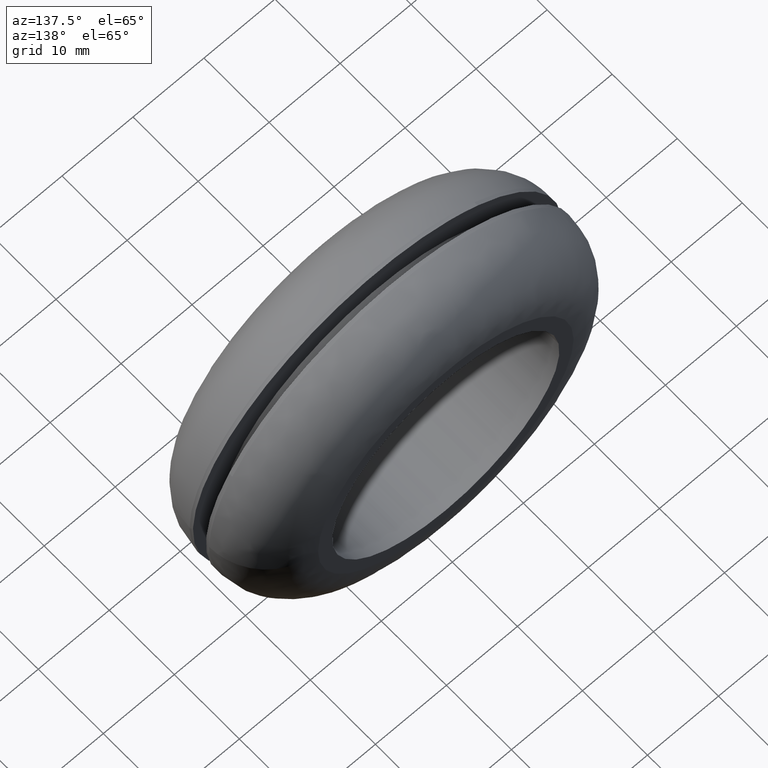
[diagram: clean part render]
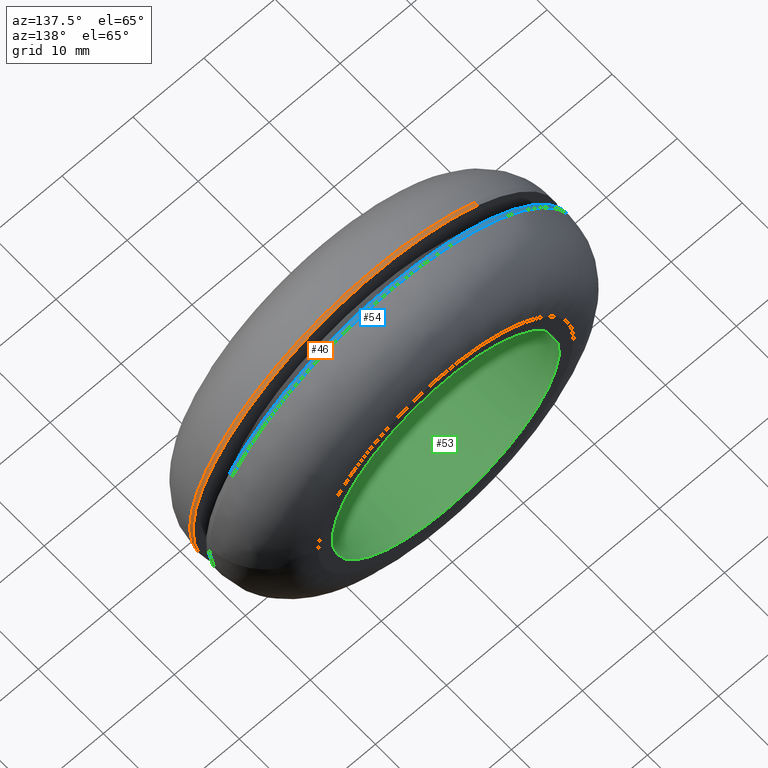
[diagram: same view with three faces highlighted in distinct colors, each labeled with its STEP entity id]
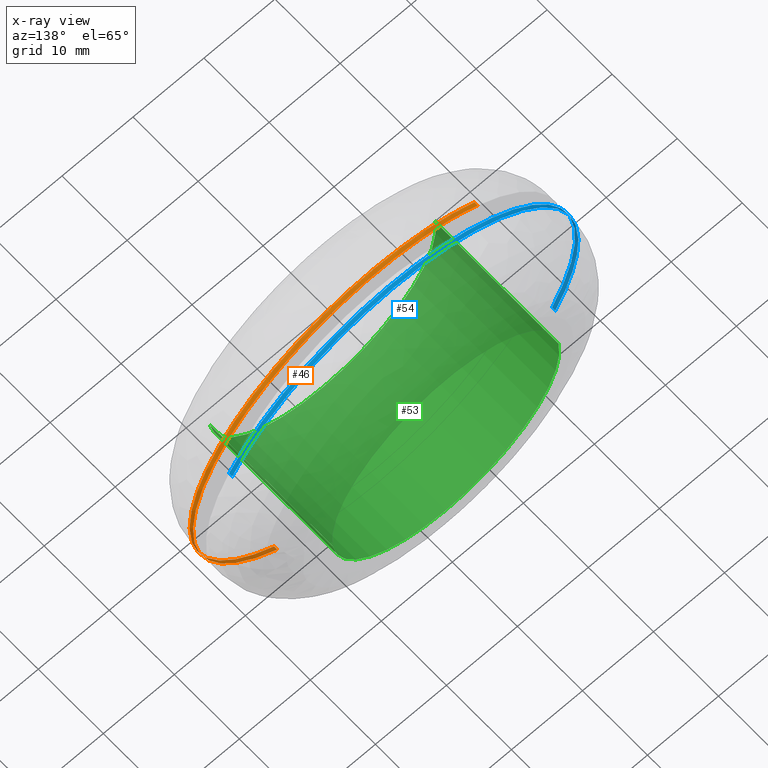
[diagram: x-ray of the same camera — body ghosted, the three highlighted faces saturated]
A machine part, auxiliary view with three faces highlighted in distinct colors.
The next image is the same camera in x-ray (body ghosted, the three faces saturated) — at least one of them is partly hidden behind the body in this view.
Their STEP definitions:

[orange] entity #46 — the highlighted cylindrical surface (partial cylindrical patch) has radius 26 mm, axis along (-0, 1, -0).
#46=ADVANCED_FACE('',(#121),#120,.T.);
#120=CYLINDRICAL_SURFACE('',#257,2.60000000000E+001);
#121=FACE_OUTER_BOUND('',#258,.T.);
#254=CARTESIAN_POINT('',(2.56769125169E-015,8.51250000000E+000,3.49013534840E-015));
#255=DIRECTION('',(-3.68710081750E-016,1.00000000000E+000,-2.38251823065E-016));
#256=DIRECTION('',(-5.42728861529E-001,-4.93038065763E-032,8.39907960948E-001));
#257=AXIS2_PLACEMENT_3D('',#254,#255,#256);
#258=EDGE_LOOP('',(#422,#423,#424,#425,#426,#427,#428));
#422=ORIENTED_EDGE('',*,*,#493,.T.);
#423=ORIENTED_EDGE('',*,*,#518,.F.);
#424=ORIENTED_EDGE('',*,*,#519,.F.);
#425=ORIENTED_EDGE('',*,*,#520,.F.);
#426=ORIENTED_EDGE('',*,*,#521,.F.);
#427=ORIENTED_EDGE('',*,*,#522,.F.);
#428=ORIENTED_EDGE('',*,*,#523,.T.);
#493=EDGE_CURVE('',#552,#544,#553,.T.);
#518=EDGE_CURVE('',#724,#544,#725,.T.);
#519=EDGE_CURVE('',#731,#724,#732,.T.);
#520=EDGE_CURVE('',#738,#731,#739,.T.);
#521=EDGE_CURVE('',#745,#738,#746,.T.);
#522=EDGE_CURVE('',#752,#745,#753,.T.);
#523=EDGE_CURVE('',#752,#552,#759,.T.);
#544=VERTEX_POINT('',#896);
#552=VERTEX_POINT('',#902);
#553=(BOUNDED_CURVE() B_SPLINE_CURVE(2,(#903,#904,#905,#906,#907),.UNSPECIFIED.,.F.,.F.) B_SPLINE_CURVE_WITH_KNOTS((3,2,3),(0.00000000000E+000,5.00000000000E-001,1.00000000000E+000),.UNSPECIFIED.) CURVE() GEOMETRIC_REPRESENTATION_ITEM() RATIONAL_B_SPLINE_CURVE((1.00000000000E+000,7.07160008252E-001,1.00000000000E+000,7.07160008252E-001,1.00000000000E+000)) REPRESENTATION_ITEM('') );
#724=VERTEX_POINT('',#1020);
#725=(BOUNDED_CURVE() B_SPLINE_CURVE(1,(#1021,#1022),.UNSPECIFIED.,.F.,.F.) B_SPLINE_CURVE_WITH_KNOTS((2,2),(8.33340485896E-002,9.16666738312E-001),.UNSPECIFIED.) CURVE() GEOMETRIC_REPRESENTATION_ITEM() RATIONAL_B_SPLINE_CURVE((1.00000000000E+000,1.00000000000E+000)) REPRESENTATION_ITEM('') );
#731=VERTEX_POINT('',#1023);
#732=CIRCLE('',#1027,2.60000000000E+001);
#738=VERTEX_POINT('',#1028);
#739=CIRCLE('',#1032,2.60000000000E+001);
#745=VERTEX_POINT('',#1033);
#746=CIRCLE('',#1037,2.60000000000E+001);
#752=VERTEX_POINT('',#1038);
#753=CIRCLE('',#1042,2.60000000000E+001);
#759=(BOUNDED_CURVE() B_SPLINE_CURVE(1,(#1043,#1044),.UNSPECIFIED.,.F.,.F.) B_SPLINE_CURVE_WITH_KNOTS((2,2),(8.33344103782E-002,9.16666666667E-001),.UNSPECIFIED.) CURVE() GEOMETRIC_REPRESENTATION_ITEM() RATIONAL_B_SPLINE_CURVE((7.50000000000E-001,7.50000000000E-001)) REPRESENTATION_ITEM('') );
#896=CARTESIAN_POINT('',(-1.41109503993E+001,8.50000000000E+000,2.18376069849E+001));
#902=CARTESIAN_POINT('',(1.41109503998E+001,8.50000000000E+000,-2.18376069846E+001));
#903=CARTESIAN_POINT('',(1.41109503998E+001,8.50000000000E+000,-2.18376069846E+001));
#904=CARTESIAN_POINT('',(3.59475954574E+001,8.50000000000E+000,-7.71795709582E+000));
#905=CARTESIAN_POINT('',(2.18354822698E+001,8.50000000000E+000,1.41142379903E+001));
#906=CARTESIAN_POINT('',(7.72336908215E+000,8.50000000000E+000,3.59464330765E+001));
#907=CARTESIAN_POINT('',(-1.41109503993E+001,8.50000000000E+000,2.18376069849E+001));
#1020=CARTESIAN_POINT('',(-1.41109503998E+001,8.00000041216E+000,2.18376069846E+001));
#1021=CARTESIAN_POINT('',(-1.41109503998E+001,8.00000042915E+000,2.18376069846E+001));
#1022=CARTESIAN_POINT('',(-1.41109503998E+001,8.50000004299E+000,2.18376069846E+001));
#1023=CARTESIAN_POINT('',(0.00000000000E+000,8.00000000000E+000,2.60000000000E+001));
#1024=CARTESIAN_POINT('',(1.06581410364E-013,8.00000055540E+000,2.41584530158E-013));
#1025=DIRECTION('',(-2.29070704777E-008,-1.00000000000E+000,-2.13616895796E-008));
#1026=DIRECTION('',(4.09928501400E-015,2.13616895796E-008,-1.00000000000E+000));
#1027=AXIS2_PLACEMENT_3D('',#1024,#1025,#1026);
#1028=CARTESIAN_POINT('',(2.59999999866E+001,8.00000128440E+000,-8.34345786034E-004));
#1029=CARTESIAN_POINT('',(-8.49098569233E-013,8.00000064622E+000,5.15854026162E-012));
#1030=DIRECTION('',(2.45444224191E-008,-1.00000000000E+000,-2.48547911935E-008));
#1031=DIRECTION('',(-9.99921052634E-001,-2.48547943252E-008,1.25653690336E-002));
#1032=AXIS2_PLACEMENT_3D('',#1029,#1030,#1031);
#1033=CARTESIAN_POINT('',(2.59979473685E+001,8.00000129245E+000,-3.26699594867E-001));
#1034=CARTESIAN_POINT('',(-8.49098569233E-013,8.00000064622E+000,5.15854026162E-012));
#1035=DIRECTION('',(2.45444224191E-008,-1.00000000000E+000,-2.48547911935E-008));
#1036=DIRECTION('',(-9.99921052634E-001,-2.48547943252E-008,1.25653690336E-002));
#1037=AXIS2_PLACEMENT_3D('',#1034,#1035,#1036);
#1038=CARTESIAN_POINT('',(1.41120938842E+001,8.00000045866E+000,-2.18368680493E+001));
#1039=CARTESIAN_POINT('',(-3.85469434150E-012,8.00000064622E+000,-3.95239396767E-012));
#1040=DIRECTION('',(2.51691406218E-008,-1.00000000000E+000,2.48547938545E-008));
#1041=DIRECTION('',(-5.42728709039E-001,7.21572647787E-009,8.39908059483E-001));
#1042=AXIS2_PLACEMENT_3D('',#1039,#1040,#1041);
#1043=CARTESIAN_POINT('',(1.41109503998E+001,8.00000064622E+000,-2.18376069846E+001));
#1044=CARTESIAN_POINT('',(1.41109503998E+001,8.50000000000E+000,-2.18376069846E+001));

[blue] entity #54 — the highlighted cylindrical surface (partial cylindrical patch) has radius 26 mm, axis along (0, 1, -0).
#54=ADVANCED_FACE('',(#201),#200,.T.);
#200=CYLINDRICAL_SURFACE('',#381,2.60000000000E+001);
#201=FACE_OUTER_BOUND('',#382,.T.);
#378=CARTESIAN_POINT('',(-3.85166903468E-015,1.10125000000E+001,-7.29355321586E-015));
#379=DIRECTION('',(5.52561966324E-016,1.00000000000E+000,-7.16243600734E-016));
#380=DIRECTION('',(-8.74946427443E-001,1.36642833800E-016,-4.84219732254E-001));
#381=AXIS2_PLACEMENT_3D('',#378,#379,#380);
#382=EDGE_LOOP('',(#477,#478,#479,#480,#481,#482,#483));
#477=ORIENTED_EDGE('',*,*,#533,.T.);
#478=ORIENTED_EDGE('',*,*,#532,.T.);
#479=ORIENTED_EDGE('',*,*,#531,.T.);
#480=ORIENTED_EDGE('',*,*,#539,.T.);
#481=ORIENTED_EDGE('',*,*,#542,.F.);
#482=ORIENTED_EDGE('',*,*,#499,.F.);
#483=ORIENTED_EDGE('',*,*,#543,.T.);
#499=EDGE_CURVE('',#587,#594,#595,.T.);
#531=EDGE_CURVE('',#811,#804,#812,.T.);
#532=EDGE_CURVE('',#818,#811,#819,.T.);
#533=EDGE_CURVE('',#825,#818,#826,.T.);
#539=EDGE_CURVE('',#804,#859,#866,.T.);
#542=EDGE_CURVE('',#594,#859,#884,.T.);
#543=EDGE_CURVE('',#587,#825,#890,.T.);
#587=VERTEX_POINT('',#927);
#594=VERTEX_POINT('',#932);
#595=CIRCLE('',#936,2.60000000000E+001);
#804=VERTEX_POINT('',#1074);
#811=VERTEX_POINT('',#1080);
#812=CIRCLE('',#1084,2.60000000000E+001);
#818=VERTEX_POINT('',#1085);
#819=CIRCLE('',#1089,2.60000000000E+001);
#825=VERTEX_POINT('',#1090);
#826=CIRCLE('',#1094,2.60000000000E+001);
#859=VERTEX_POINT('',#1115);
#866=CIRCLE('',#1123,2.60000000000E+001);
#884=(BOUNDED_CURVE() B_SPLINE_CURVE(1,(#1128,#1129),.UNSPECIFIED.,.F.,.F.) B_SPLINE_CURVE_WITH_KNOTS((2,2),(8.33332538610E-002,9.16657924049E-001),.UNSPECIFIED.) CURVE() GEOMETRIC_REPRESENTATION_ITEM() RATIONAL_B_SPLINE_CURVE((1.00000000000E+000,1.00000000000E+000)) REPRESENTATION_ITEM('') );
#890=(BOUNDED_CURVE() B_SPLINE_CURVE(1,(#1130,#1131),.UNSPECIFIED.,.F.,.F.) B_SPLINE_CURVE_WITH_KNOTS((2,2),(8.33333333334E-002,9.16659795844E-001),.UNSPECIFIED.) CURVE() GEOMETRIC_REPRESENTATION_ITEM() RATIONAL_B_SPLINE_CURVE((7.50000000000E-001,7.50000000000E-001)) REPRESENTATION_ITEM('') );
#927=CARTESIAN_POINT('',(2.27478691160E+001,1.05000000000E+001,1.25910464491E+001));
#932=CARTESIAN_POINT('',(-2.27486056636E+001,1.05000000000E+001,-1.25897156586E+001));
#933=CARTESIAN_POINT('',(-3.55271367880E-015,1.05000000000E+001,-1.06581410364E-014));
#934=DIRECTION('',(0.00000000000E+000,-1.00000000000E+000,0.00000000000E+000));
#935=DIRECTION('',(-1.36642833800E-016,-0.00000000000E+000,-1.00000000000E+000));
#936=AXIS2_PLACEMENT_3D('',#933,#934,#935);
#1074=CARTESIAN_POINT('',(-2.60000000000E+001,1.09999924556E+001,-1.77947989803E-014));
#1080=CARTESIAN_POINT('',(-2.59979473683E+001,1.09999924082E+001,3.26699605004E-001));
#1081=CARTESIAN_POINT('',(2.48157050464E-012,1.09999962041E+001,-1.04432018588E-011));
#1082=DIRECTION('',(1.44173882931E-007,-1.00000000000E+000,-1.45997022441E-007));
#1083=DIRECTION('',(9.99921052629E-001,1.45997007304E-007,-1.25653694236E-002));
#1084=AXIS2_PLACEMENT_3D('',#1081,#1082,#1083);
#1085=CARTESIAN_POINT('',(0.00000000000E+000,1.10000000000E+001,2.60000000000E+001));
#1086=CARTESIAN_POINT('',(6.69686528454E-013,1.09999962041E+001,7.54951656745E-012));
#1087=DIRECTION('',(1.47843185446E-007,-1.00000000000E+000,1.45997112178E-007));
#1088=DIRECTION('',(2.57571741713E-014,-1.45997112178E-007,-1.00000000000E+000));
#1089=AXIS2_PLACEMENT_3D('',#1086,#1087,#1088);
#1090=CARTESIAN_POINT('',(2.27471139903E+001,1.09999950306E+001,1.25924106155E+001));
#1091=CARTESIAN_POINT('',(-4.58300064565E-013,1.09999962679E+001,4.43733938482E-012));
#1092=DIRECTION('',(-1.33857194641E-007,-1.00000000000E+000,1.43540724722E-007));
#1093=DIRECTION('',(-8.74946516989E-001,4.76126581580E-008,-4.84219570451E-001));
#1094=AXIS2_PLACEMENT_3D('',#1091,#1092,#1093);
#1115=CARTESIAN_POINT('',(-2.27486041857E+001,1.09999947624E+001,-1.25897183289E+001));
#1120=CARTESIAN_POINT('',(2.48157050464E-012,1.09999962041E+001,-1.04432018588E-011));
#1121=DIRECTION('',(1.44173882931E-007,-1.00000000000E+000,-1.45997022441E-007));
#1122=DIRECTION('',(9.99921052629E-001,1.45997007304E-007,-1.25653694236E-002));
#1123=AXIS2_PLACEMENT_3D('',#1120,#1121,#1122);
#1128=CARTESIAN_POINT('',(-2.27486071135E+001,1.04999999523E+001,-1.25897130386E+001));
#1129=CARTESIAN_POINT('',(-2.27486071135E+001,1.09999947544E+001,-1.25897130386E+001));
#1130=CARTESIAN_POINT('',(2.27486071135E+001,1.05000000000E+001,1.25897130386E+001));
#1131=CARTESIAN_POINT('',(2.27486071135E+001,1.09999958775E+001,1.25897130386E+001));

[green] entity #53 — the highlighted cylindrical surface (partial cylindrical patch) has radius 16 mm, axis along (-0, 1, -0).
#53=ADVANCED_FACE('',(#191),#190,.F.);
#190=CYLINDRICAL_SURFACE('',#376,1.60000000000E+001);
#191=FACE_OUTER_BOUND('',#377,.T.);
#373=CARTESIAN_POINT('',(-7.44403468673E-015,1.94750000000E+001,-4.04665617200E-014));
#374=DIRECTION('',(-5.14318721736E-016,1.00000000000E+000,-4.32690898328E-015));
#375=DIRECTION('',(-9.93009526364E-001,-1.18329135783E-029,1.18034234657E-001));
#376=AXIS2_PLACEMENT_3D('',#373,#374,#375);
#377=EDGE_LOOP('',(#471,#472,#473,#474,#475,#476));
#471=ORIENTED_EDGE('',*,*,#507,.F.);
#472=ORIENTED_EDGE('',*,*,#509,.F.);
#473=ORIENTED_EDGE('',*,*,#540,.F.);
#474=ORIENTED_EDGE('',*,*,#513,.T.);
#475=ORIENTED_EDGE('',*,*,#515,.T.);
#476=ORIENTED_EDGE('',*,*,#541,.T.);
#507=EDGE_CURVE('',#649,#650,#651,.T.);
#509=EDGE_CURVE('',#657,#649,#664,.T.);
#513=EDGE_CURVE('',#691,#692,#693,.T.);
#515=EDGE_CURVE('',#692,#699,#706,.T.);
#540=EDGE_CURVE('',#691,#657,#872,.T.);
#541=EDGE_CURVE('',#699,#650,#878,.T.);
#649=VERTEX_POINT('',#971);
#650=VERTEX_POINT('',#972);
#651=CIRCLE('',#976,1.60000000000E+001);
#657=VERTEX_POINT('',#977);
#664=CIRCLE('',#985,1.60000000000E+001);
#691=VERTEX_POINT('',#1001);
#692=VERTEX_POINT('',#1002);
#693=CIRCLE('',#1006,1.60000000000E+001);
#699=VERTEX_POINT('',#1007);
#706=CIRCLE('',#1015,1.60000000000E+001);
#872=(BOUNDED_CURVE() B_SPLINE_CURVE(1,(#1124,#1125),.UNSPECIFIED.,.F.,.F.) B_SPLINE_CURVE_WITH_KNOTS((2,2),(8.33333328360E-002,9.16666665505E-001),.UNSPECIFIED.) CURVE() GEOMETRIC_REPRESENTATION_ITEM() RATIONAL_B_SPLINE_CURVE((1.00000000000E+000,1.00000000000E+000)) REPRESENTATION_ITEM('') );
#878=(BOUNDED_CURVE() B_SPLINE_CURVE(1,(#1126,#1127),.UNSPECIFIED.,.F.,.F.) B_SPLINE_CURVE_WITH_KNOTS((2,2),(8.33333333333E-002,9.16666666667E-001),.UNSPECIFIED.) CURVE() GEOMETRIC_REPRESENTATION_ITEM() RATIONAL_B_SPLINE_CURVE((7.50000000000E-001,7.50000000000E-001)) REPRESENTATION_ITEM('') );
#971=CARTESIAN_POINT('',(3.10862446895E-015,1.90000000000E+001,-1.60000000000E+001));
#972=CARTESIAN_POINT('',(1.58878257745E+001,1.90000000000E+001,-1.89129377923E+000));
#973=CARTESIAN_POINT('',(9.32587340685E-012,1.90000000000E+001,2.05124806030E-011));
#974=DIRECTION('',(5.96907578988E-015,-1.00000000000E+000,4.26929276445E-014));
#975=DIRECTION('',(-5.82284220840E-013,-4.26929276445E-014,-1.00000000000E+000));
#976=AXIS2_PLACEMENT_3D('',#973,#974,#975);
#977=CARTESIAN_POINT('',(-1.58881531124E+001,1.90000000000E+001,1.88854194430E+000));
#982=CARTESIAN_POINT('',(9.32587340685E-012,1.90000000000E+001,2.05124806030E-011));
#983=DIRECTION('',(5.96907578988E-015,-1.00000000000E+000,4.26929276445E-014));
#984=DIRECTION('',(-5.82284220840E-013,-4.26929276445E-014,-1.00000000000E+000));
#985=AXIS2_PLACEMENT_3D('',#982,#983,#984);
#1001=CARTESIAN_POINT('',(-1.58881531124E+001,-5.05372039470E-015,1.88854194430E+000));
#1002=CARTESIAN_POINT('',(-7.99360577730E-015,-2.21951399081E-014,-1.60000000000E+001));
#1003=CARTESIAN_POINT('',(9.09672337457E-012,-4.52517796255E-015,2.00177652232E-011));
#1004=DIRECTION('',(1.64537465850E-016,-1.00000000000E+000,1.10437262160E-015));
#1005=DIRECTION('',(-5.68683988789E-013,-1.10437262160E-015,-1.00000000000E+000));
#1006=AXIS2_PLACEMENT_3D('',#1003,#1004,#1005);
#1007=CARTESIAN_POINT('',(1.58878257745E+001,-3.99972844097E-015,-1.89129377923E+000));
#1012=CARTESIAN_POINT('',(9.09672337457E-012,-4.52517796255E-015,2.00177652232E-011));
#1013=DIRECTION('',(1.64537465850E-016,-1.00000000000E+000,1.10437262160E-015));
#1014=DIRECTION('',(-5.68683988789E-013,-1.10437262160E-015,-1.00000000000E+000));
#1015=AXIS2_PLACEMENT_3D('',#1012,#1013,#1014);
#1124=CARTESIAN_POINT('',(-1.58881524218E+001,-1.13401874557E-008,1.88854775451E+000));
#1125=CARTESIAN_POINT('',(-1.58881524218E+001,1.89999999735E+001,1.88854775451E+000));
#1126=CARTESIAN_POINT('',(1.58881524218E+001,1.15463194561E-014,-1.88854775451E+000));
#1127=CARTESIAN_POINT('',(1.58881524218E+001,1.90000000000E+001,-1.88854775451E+000));